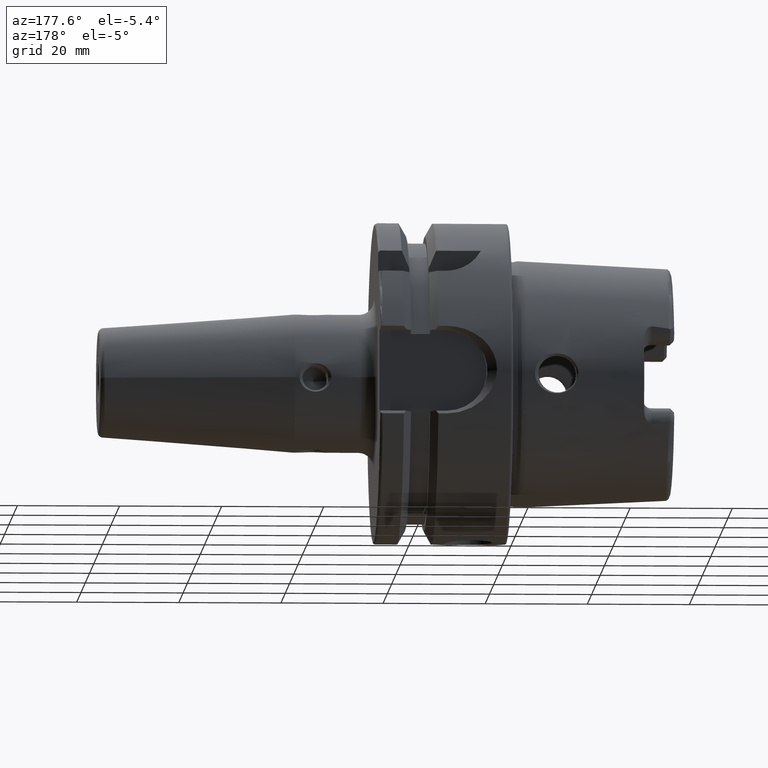
[diagram: clean part render]
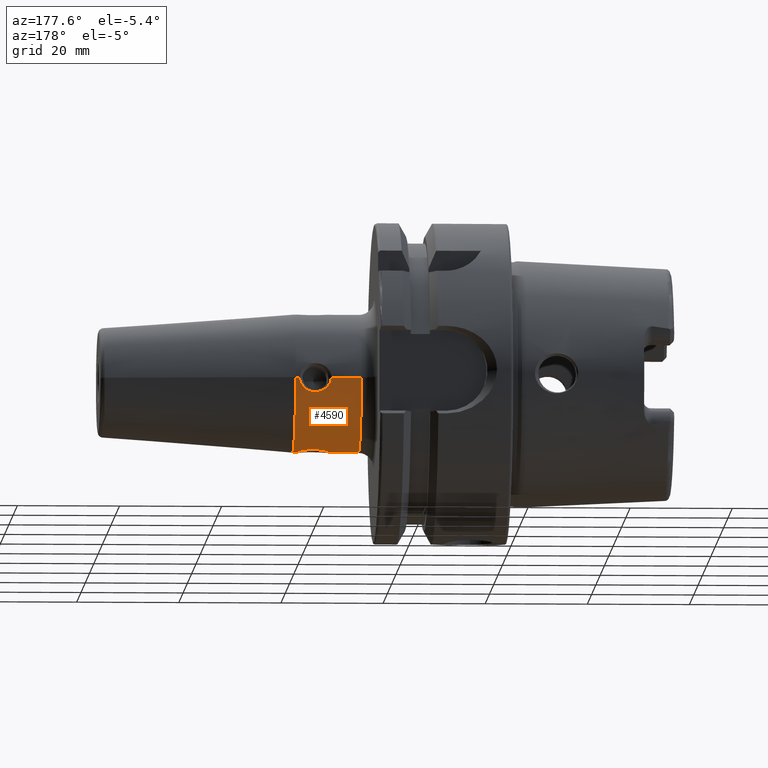
[diagram: same view with one face highlighted and labeled with its STEP entity id]
A machine part, auxiliary view. The second image highlights one B-rep face of the part: STEP entity #4590.
In plain terms, the highlighted cylindrical surface (partial cylindrical patch) has radius 13.5001 mm, axis along (1, 0, 0).
Its self-contained STEP definition (entity closure, byte-faithful):
#1157=CARTESIAN_POINT('',(1.618E0,0.E0,-5.315E-1));
#1158=CARTESIAN_POINT('',(1.618E0,9.020144980329E-3,-5.315E-1));
#1159=CARTESIAN_POINT('',(1.615671559996E0,2.652835697368E-2,
-5.310577648100E-1));
#1160=CARTESIAN_POINT('',(1.604649735652E0,5.247102344453E-2,
-5.290890350999E-1));
#1161=CARTESIAN_POINT('',(1.587872495266E0,7.403492969755E-2,
-5.264391827534E-1));
#1162=CARTESIAN_POINT('',(1.566082009219E0,9.152294812492E-2,
-5.236354091686E-1));
#1163=CARTESIAN_POINT('',(1.540297839226E0,1.040027151859E-1,
-5.212547152471E-1));
#1164=CARTESIAN_POINT('',(1.510746948718E0,1.107290571622E-1,
-5.198393015938E-1));
#1165=CARTESIAN_POINT('',(1.480760199094E0,1.106760574187E-1,
-5.198511552824E-1));
#1166=CARTESIAN_POINT('',(1.451279899991E0,1.038376981918E-1,
-5.212874186094E-1));
#1167=CARTESIAN_POINT('',(1.425741360348E0,9.140885671061E-2,
-5.236560942412E-1));
#1168=CARTESIAN_POINT('',(1.403911679338E0,7.380934696144E-2,
-5.264702874357E-1));
#1169=CARTESIAN_POINT('',(1.387299530354E0,5.237738700961E-2,
-5.290984189134E-1));
#1170=CARTESIAN_POINT('',(1.376265199311E0,2.630873778723E-2,
-5.310692008282E-1));
#1171=CARTESIAN_POINT('',(1.374E0,8.932472606069E-3,-5.315E-1));
#1172=CARTESIAN_POINT('',(1.374E0,0.E0,-5.315E-1));
#1174=CARTESIAN_POINT('',(1.374E0,0.E0,-5.315E-1));
#1175=CARTESIAN_POINT('',(1.374E0,-9.033959907294E-3,-5.315E-1));
#1176=CARTESIAN_POINT('',(1.376335067518E0,-2.657154277039E-2,
-5.310564821381E-1));
#1177=CARTESIAN_POINT('',(1.387402011582E0,-5.257174147993E-2,
-5.290799175902E-1));
#1178=CARTESIAN_POINT('',(1.404262716047E0,-7.418040855050E-2,
-5.264190192098E-1));
#1179=CARTESIAN_POINT('',(1.426146951509E0,-9.167319560455E-2,
-5.236090071195E-1));
#1180=CARTESIAN_POINT('',(1.452040372365E0,-1.041271250334E-1,
-5.212295558133E-1));
#1181=CARTESIAN_POINT('',(1.481689221903E0,-1.107821666828E-1,
-5.198277266322E-1));
#1182=CARTESIAN_POINT('',(1.511766746830E0,-1.106230437079E-1,
-5.198627868930E-1));
#1183=CARTESIAN_POINT('',(1.541295051951E0,-1.036346110329E-1,
-5.213286993403E-1));
#1184=CARTESIAN_POINT('',(1.566761618245E0,-9.109195475211E-2,
-5.237124257164E-1));
#1185=CARTESIAN_POINT('',(1.588557468122E0,-7.334003598353E-2,
-5.265384693048E-1));
#1186=CARTESIAN_POINT('',(1.604977953813E0,-5.184622417195E-2,
-5.291469565288E-1));
#1187=CARTESIAN_POINT('',(1.615725817294E0,-2.621303730821E-2,
-5.310681035710E-1));
#1188=CARTESIAN_POINT('',(1.618E0,-8.906910424E-3,-5.315E-1));
#1189=CARTESIAN_POINT('',(1.618E0,0.E0,-5.315E-1));
#1191=CARTESIAN_POINT('',(1.141622047244E0,0.E0,0.E0));
#1192=DIRECTION('',(1.E0,0.E0,0.E0));
#1193=DIRECTION('',(0.E0,-1.E0,0.E0));
#1194=AXIS2_PLACEMENT_3D('',#1191,#1192,#1193);
#1196=DIRECTION('',(-1.E0,0.E0,-2.079542346792E-12));
#1197=VECTOR('',#1196,2.323779527559E-1);
#1198=CARTESIAN_POINT('',(1.374E0,-5.315E-1,0.E0));
#1199=LINE('',#1198,#1197);
#1200=CARTESIAN_POINT('',(1.618E0,-5.315E-1,0.E0));
#1201=CARTESIAN_POINT('',(1.618E0,-5.315E-1,-9.296804536379E-3));
#1202=CARTESIAN_POINT('',(1.615489434493E0,-5.310237251338E-1,
-2.714015070190E-2));
#1203=CARTESIAN_POINT('',(1.604583253260E0,-5.290804217286E-1,
-5.245588337230E-2));
#1204=CARTESIAN_POINT('',(1.588185970271E0,-5.264853279388E-1,
-7.371208556681E-2));
#1205=CARTESIAN_POINT('',(1.566290117146E0,-5.236571642003E-1,
-9.140823295474E-2));
#1206=CARTESIAN_POINT('',(1.540524701314E0,-5.212711724448E-1,
-1.039196730779E-1));
#1207=CARTESIAN_POINT('',(1.510987180893E0,-5.198454429343E-1,
-1.107014896383E-1));
#1208=CARTESIAN_POINT('',(1.481063034318E0,-5.198451104584E-1,
-1.107033690869E-1));
#1209=CARTESIAN_POINT('',(1.451621338439E0,-5.212627941807E-1,
-1.039585350406E-1));
#1210=CARTESIAN_POINT('',(1.425958937197E0,-5.236298842551E-1,
-9.156037510041E-2));
#1211=CARTESIAN_POINT('',(1.403994195341E0,-5.264586823627E-1,
-7.389776153654E-2));
#1212=CARTESIAN_POINT('',(1.387535106778E0,-5.290600802750E-1,
-5.266985781109E-2));
#1213=CARTESIAN_POINT('',(1.376519587402E0,-5.310217666373E-1,
-2.721997435826E-2));
#1214=CARTESIAN_POINT('',(1.374E0,-5.315E-1,-9.325099614223E-3));
#1215=CARTESIAN_POINT('',(1.374E0,-5.315E-1,0.E0));
#1217=DIRECTION('',(-1.E0,-9.623126667053E-12,-1.454658958155E-9));
#1218=VECTOR('',#1217,3.100000000396E-2);
#1219=CARTESIAN_POINT('',(1.649000000004E0,-5.314999999997E-1,
4.509438743066E-11));
#1220=LINE('',#1219,#1218);
#1221=CARTESIAN_POINT('',(1.649E0,0.E0,0.E0));
#1222=DIRECTION('',(-1.E0,0.E0,0.E0));
#1223=DIRECTION('',(0.E0,1.E0,0.E0));
#1224=AXIS2_PLACEMENT_3D('',#1221,#1222,#1223);
#1226=DIRECTION('',(-1.E0,9.623126667053E-12,1.454657658868E-9));
#1227=VECTOR('',#1226,3.100000000396E-2);
#1228=CARTESIAN_POINT('',(1.649000000004E0,5.314999999997E-1,
-4.509440370316E-11));
#1229=LINE('',#1228,#1227);
#1230=CARTESIAN_POINT('',(1.374E0,5.315E-1,0.E0));
#1231=CARTESIAN_POINT('',(1.374E0,5.315E-1,-9.321619220757E-3));
#1232=CARTESIAN_POINT('',(1.376523125030E0,5.310212940735E-1,
-2.721107621442E-2));
#1233=CARTESIAN_POINT('',(1.387492002659E0,5.290673063828E-1,
-5.259658858873E-2));
#1234=CARTESIAN_POINT('',(1.403978533528E0,5.264608662053E-1,
-7.388794801182E-2));
#1235=CARTESIAN_POINT('',(1.425977054382E0,5.236263315109E-1,
-9.158377735680E-2));
#1236=CARTESIAN_POINT('',(1.451862312701E0,5.212424247985E-1,
-1.040618008412E-1));
#1237=CARTESIAN_POINT('',(1.481499046165E0,5.198324511289E-1,
-1.107611579694E-1));
#1238=CARTESIAN_POINT('',(1.511524644858E0,5.198578671816E-1,
-1.106450498979E-1));
#1239=CARTESIAN_POINT('',(1.541014154179E0,5.213081508853E-1,
-1.037362263768E-1));
#1240=CARTESIAN_POINT('',(1.566591169530E0,5.236916482112E-1,
-9.121102727810E-2));
#1241=CARTESIAN_POINT('',(1.588503882764E0,5.265305295515E-1,
-7.340960569256E-2));
#1242=CARTESIAN_POINT('',(1.604853739787E0,5.291270220477E-1,
-5.197327712296E-2));
#1243=CARTESIAN_POINT('',(1.615513378114E0,5.310287775859E-1,
-2.694583798477E-2));
#1244=CARTESIAN_POINT('',(1.618E0,5.315E-1,-9.222857578355E-3));
#1245=CARTESIAN_POINT('',(1.618E0,5.315E-1,0.E0));
#1247=DIRECTION('',(-1.E0,0.E0,2.079433107239E-12));
#1248=VECTOR('',#1247,2.323779527559E-1);
#1249=CARTESIAN_POINT('',(1.374E0,5.315E-1,0.E0));
#1250=LINE('',#1249,#1248);
#2300=CARTESIAN_POINT('',(1.618E0,5.315E-1,0.E0));
#2315=CARTESIAN_POINT('',(1.374E0,5.315E-1,0.E0));
#2322=CARTESIAN_POINT('',(1.374E0,-5.315E-1,0.E0));
#2337=CARTESIAN_POINT('',(1.618E0,-5.315E-1,0.E0));
#3118=CARTESIAN_POINT('',(1.649E0,5.315E-1,0.E0));
#3119=CARTESIAN_POINT('',(1.649E0,-5.315E-1,0.E0));
#3120=VERTEX_POINT('',#3118);
#3121=VERTEX_POINT('',#3119);
#3192=VERTEX_POINT('',#2322);
#3193=VERTEX_POINT('',#2337);
#3204=VERTEX_POINT('',#1157);
#3205=VERTEX_POINT('',#1172);
#3216=VERTEX_POINT('',#2300);
#3217=VERTEX_POINT('',#2315);
#3246=CARTESIAN_POINT('',(1.141622047244E0,-5.315E-1,0.E0));
#3247=CARTESIAN_POINT('',(1.141622047244E0,5.315E-1,0.E0));
#3248=VERTEX_POINT('',#3246);
#3249=VERTEX_POINT('',#3247);
#4562=CARTESIAN_POINT('',(0.E0,0.E0,0.E0));
#4563=DIRECTION('',(1.E0,0.E0,0.E0));
#4564=DIRECTION('',(0.E0,-1.E0,0.E0));
#4565=AXIS2_PLACEMENT_3D('',#4562,#4563,#4564);
#4566=CYLINDRICAL_SURFACE('',#4565,5.315E-1);
#4568=ORIENTED_EDGE('',*,*,#4567,.F.);
#4570=ORIENTED_EDGE('',*,*,#4569,.F.);
#4572=ORIENTED_EDGE('',*,*,#4571,.F.);
#4574=ORIENTED_EDGE('',*,*,#4573,.F.);
#4575=ORIENTED_EDGE('',*,*,#4556,.F.);
#4577=ORIENTED_EDGE('',*,*,#4576,.T.);
#4579=ORIENTED_EDGE('',*,*,#4578,.F.);
#4581=ORIENTED_EDGE('',*,*,#4580,.T.);
#4582=EDGE_LOOP('',(#4568,#4570,#4572,#4574,#4575,#4577,#4579,#4581));
#4583=FACE_OUTER_BOUND('',#4582,.F.);
#4585=ORIENTED_EDGE('',*,*,#4584,.F.);
#4587=ORIENTED_EDGE('',*,*,#4586,.F.);
#4588=EDGE_LOOP('',(#4585,#4587));
#4589=FACE_BOUND('',#4588,.F.);
#4590=ADVANCED_FACE('',(#4583,#4589),#4566,.T.);
#1173=B_SPLINE_CURVE_WITH_KNOTS('',3,(#1157,#1158,#1159,#1160,#1161,#1162,#1163,
#1164,#1165,#1166,#1167,#1168,#1169,#1170,#1171,#1172),.UNSPECIFIED.,.F.,.F.,(4,
1,1,1,1,1,1,1,1,1,1,1,1,4),(0.E0,7.692307692308E-2,1.538461538462E-1,
2.307692307692E-1,3.076923076923E-1,3.846153846154E-1,4.615384615385E-1,
5.384615384615E-1,6.153846153846E-1,6.923076923077E-1,7.692307692308E-1,
8.461538461538E-1,9.230769230769E-1,1.E0),.UNSPECIFIED.);
#1190=B_SPLINE_CURVE_WITH_KNOTS('',3,(#1174,#1175,#1176,#1177,#1178,#1179,#1180,
#1181,#1182,#1183,#1184,#1185,#1186,#1187,#1188,#1189),.UNSPECIFIED.,.F.,.F.,(4,
1,1,1,1,1,1,1,1,1,1,1,1,4),(0.E0,7.692307692308E-2,1.538461538462E-1,
2.307692307692E-1,3.076923076923E-1,3.846153846154E-1,4.615384615385E-1,
5.384615384615E-1,6.153846153846E-1,6.923076923077E-1,7.692307692308E-1,
8.461538461538E-1,9.230769230769E-1,1.E0),.UNSPECIFIED.);
#1195=CIRCLE('',#1194,5.315E-1);
#1216=B_SPLINE_CURVE_WITH_KNOTS('',3,(#1200,#1201,#1202,#1203,#1204,#1205,#1206,
#1207,#1208,#1209,#1210,#1211,#1212,#1213,#1214,#1215),.UNSPECIFIED.,.F.,.F.,(4,
1,1,1,1,1,1,1,1,1,1,1,1,4),(0.E0,7.692307692308E-2,1.538461538462E-1,
2.307692307692E-1,3.076923076923E-1,3.846153846154E-1,4.615384615385E-1,
5.384615384615E-1,6.153846153846E-1,6.923076923077E-1,7.692307692308E-1,
8.461538461538E-1,9.230769230769E-1,1.E0),.UNSPECIFIED.);
#1225=CIRCLE('',#1224,5.315E-1);
#1246=B_SPLINE_CURVE_WITH_KNOTS('',3,(#1230,#1231,#1232,#1233,#1234,#1235,#1236,
#1237,#1238,#1239,#1240,#1241,#1242,#1243,#1244,#1245),.UNSPECIFIED.,.F.,.F.,(4,
1,1,1,1,1,1,1,1,1,1,1,1,4),(0.E0,7.692307692308E-2,1.538461538462E-1,
2.307692307692E-1,3.076923076923E-1,3.846153846154E-1,4.615384615385E-1,
5.384615384615E-1,6.153846153846E-1,6.923076923077E-1,7.692307692308E-1,
8.461538461538E-1,9.230769230769E-1,1.E0),.UNSPECIFIED.);
#4556=EDGE_CURVE('',#3120,#3121,#1225,.T.);
#4567=EDGE_CURVE('',#3248,#3249,#1195,.T.);
#4569=EDGE_CURVE('',#3192,#3248,#1199,.T.);
#4571=EDGE_CURVE('',#3193,#3192,#1216,.T.);
#4573=EDGE_CURVE('',#3121,#3193,#1220,.T.);
#4576=EDGE_CURVE('',#3120,#3216,#1229,.T.);
#4578=EDGE_CURVE('',#3217,#3216,#1246,.T.);
#4580=EDGE_CURVE('',#3217,#3249,#1250,.T.);
#4584=EDGE_CURVE('',#3204,#3205,#1173,.T.);
#4586=EDGE_CURVE('',#3205,#3204,#1190,.T.);